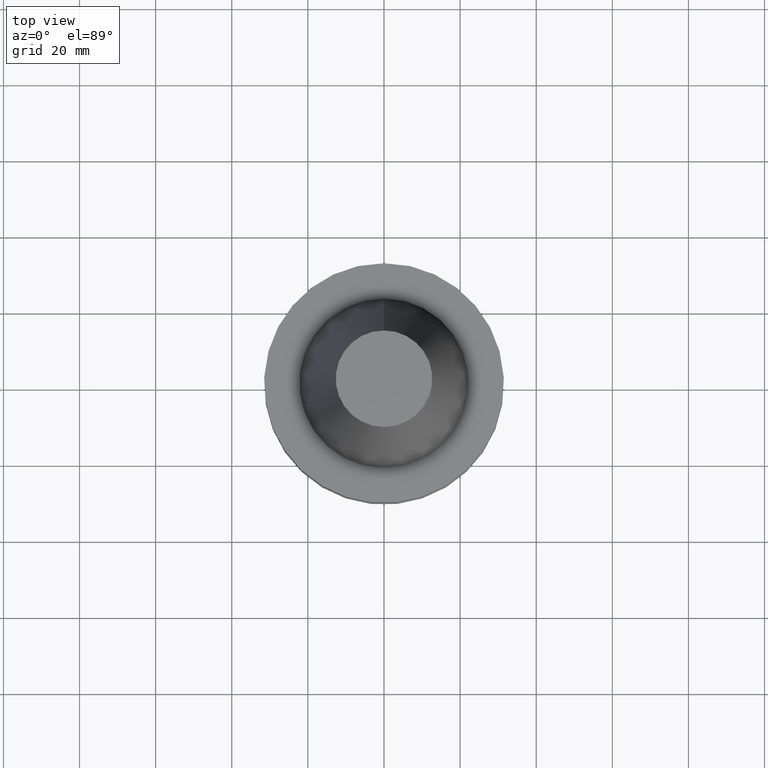
[diagram: clean part render]
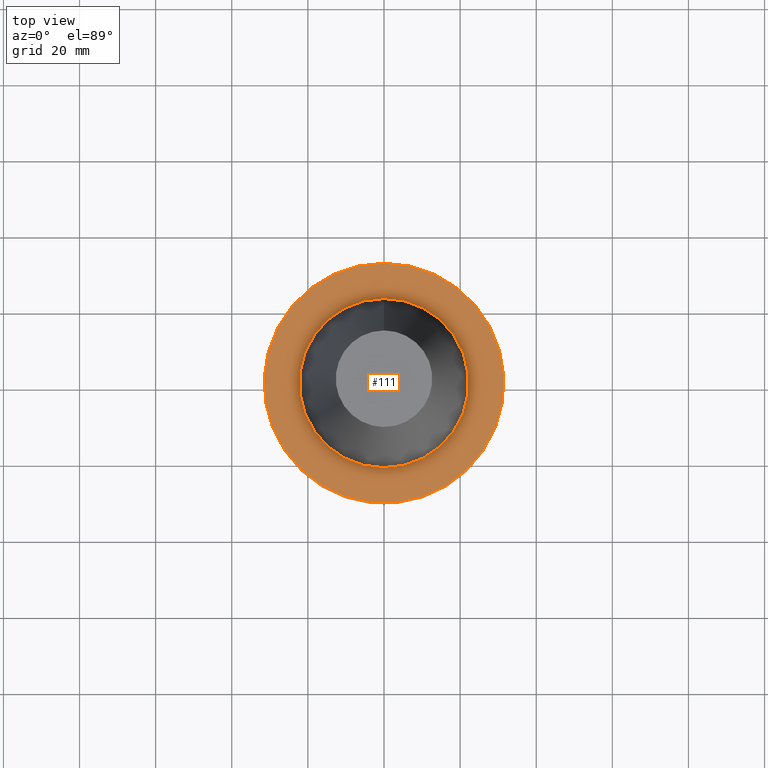
[diagram: same view with one face highlighted and labeled with its STEP entity id]
A machine part, top view. The second image highlights one B-rep face of the part: STEP entity #111.
In plain terms, the highlighted planar face has unit normal (-0, -0, 1).
Its self-contained STEP definition (entity closure, byte-faithful):
#97=EDGE_CURVE('Unnamed[1]',#234,#234,#235,.T.);
#108=EDGE_CURVE('Unnamed[1]',#252,#252,#253,.T.);
#111=ADVANCED_FACE('Unnamed[1]',(#256,#257),#258,.T.);
#234=VERTEX_POINT('',#418);
#235=CIRCLE('',#419,31.4999999999996);
#252=VERTEX_POINT('',#440);
#253=CIRCLE('',#441,22.225);
#256=FACE_OUTER_BOUND('',#445,.T.);
#257=FACE_BOUND('',#446,.T.);
#258=PLANE('',#447);
#418=CARTESIAN_POINT('',(6.12323399573568E-017,31.4999999999997,-0.999999999999825));
#419=AXIS2_PLACEMENT_3D('',#614,#615,#616);
#440=CARTESIAN_POINT('',(6.12323399573622E-017,22.2250000000001,-0.999999999999912));
#441=AXIS2_PLACEMENT_3D('',#635,#636,#637);
#445=EDGE_LOOP('',(#639));
#446=EDGE_LOOP('',(#640));
#447=AXIS2_PLACEMENT_3D('',#641,#642,#643);
#614=CARTESIAN_POINT('',(6.12323399573572E-017,7.58922343017572E-014,-0.999999999999829));
#615=DIRECTION('',(6.12323399573677E-017,-1.89333969125393E-017,-1.0));
#616=DIRECTION('',(-3.6678165344694E-033,1.0,-1.89333969125393E-017));
#635=CARTESIAN_POINT('',(6.12323399573624E-017,7.58922343017572E-014,-0.999999999999915));
#636=DIRECTION('',(6.12323399573677E-017,-1.89333969125318E-017,-1.0));
#637=DIRECTION('',(-3.66781653447183E-033,1.0,-1.89333969125318E-017));
#639=ORIENTED_EDGE('',*,*,#97,.F.);
#640=ORIENTED_EDGE('',*,*,#108,.T.);
#641=CARTESIAN_POINT('',(6.12323399573595E-017,26.8624999999999,-0.999999999999869));
#642=DIRECTION('',(-6.12323399573677E-017,-9.35138060429241E-015,1.0));
#643=DIRECTION('',(5.77434068963536E-031,-1.0,-9.35138060429241E-015));